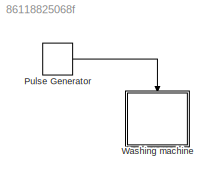
MODEL slx_86118825068f
KIND model
CONFIG AbsTol = auto
CONFIG EnableMultiTasking = off
CONFIG FixedStep = auto
CONFIG MaxStep = auto
CONFIG MinStep = auto
CONFIG RelTol = 1e-3
CONFIG SampleTimeConstraint = Unconstrained
CONFIG SolverName = VariableStepAuto
CONFIG StartTime = 0.0
CONFIG StopTime = 10.0
BLOCK [DiscretePulseGenerator] Pulse Generator
  Amplitude = [1,1,1]
  Period = [10,10,10]
  PhaseDelay = [0,0,0]
  Ports = [0, 1]
  PulseType = Time based
  PulseWidth = [5,5,5]
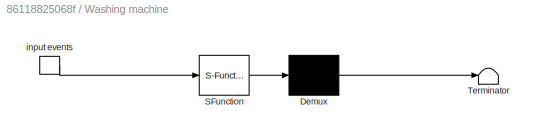
BLOCK [SubSystem] Washing machine
  ErrorFcn = Stateflow.Translate.translate
  PermitHierarchicalResolution = ExplicitOnly
  Ports = [0, 0, 0, 1]
  RequestExecContextInheritance = off
  SFBlockType = Chart
  TreatAsAtomicUnit = on
BLOCK [Demux] Washing machine/ Demux 
  Outputs = 1
  Ports = [1, 1]
BLOCK [S-Function] Washing machine/ SFunction 
  EnableBusSupport = on
  FunctionName = sf_sfun
  PortCounts = [1 1]
  Ports = [1, 1]
  SFcnIsStateOwnerBlock = off
  SFunctionDeploymentMode = off
  Tag = Stateflow S-Function 3
BLOCK [Terminator] Washing machine/ Terminator 
BLOCK [TriggerPort] Washing machine/input events
  Ports = [0, 1]
  ShowOutputPort = on
  StatesWhenEnabling = held
  TriggerType = either
  VariantControl = (inherit)
LINE Pulse Generator:1 -> Washing machine:trigger
CHART Washing machine states=7 transitions=11
  STATE_LABEL 'OFF'
  STATE_LABEL 'Ready\nen:fprintf("Initialization");n3 = 45;'
  STATE_LABEL 'off\nen:time = 0;\nfinish = 0;'
  STATE_LABEL 'Pending_State\nen:fprintf("pending")'
  STATE_LABEL 'START'
  STATE_LABEL 'STOP'
  STATE_LABEL 'Ready\nen:fprintf("Initialization");n3 = 45;'
  STATE_LABEL 'off\nen:time = 0;\nfinish = 0;'
  STATE_LABEL 'Pending_State\nen:fprintf("pending")'
  STATE_LABEL 'ON\non E:fprintf("Washing Completed!");'
  STATE_LABEL 'Add_Water\ndu:time = time + 1;\nen:fprintf("Entry stage1")'
  STATE_LABEL 'Washing\ndu:time = time + 1;\nen:fprintf("Entry stage2")'
  STATE_LABEL '[time >= 5]/{time = 0;}'
  STATE_LABEL '[time >= 10]/{time = 0;}'
  STATE_LABEL 'H'
  STATE_LABEL 'Add_Water\ndu:time = time + 1;\nen:fprintf("Entry stage1")'
  STATE_LABEL 'Washing\ndu:time = time + 1;\nen:fprintf("Entry stage2")'
CHART  states=0 transitions=0
